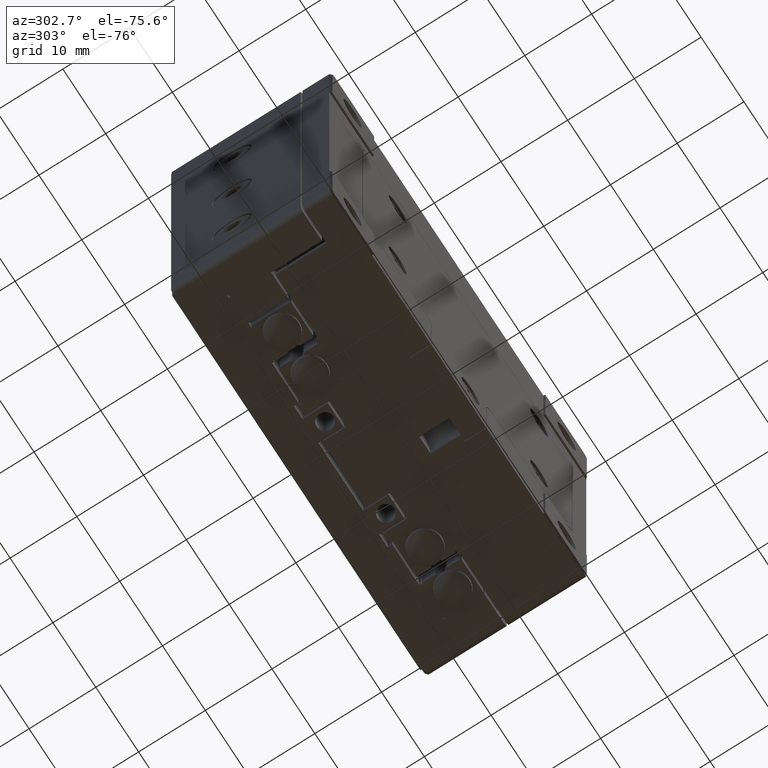
[diagram: clean part render]
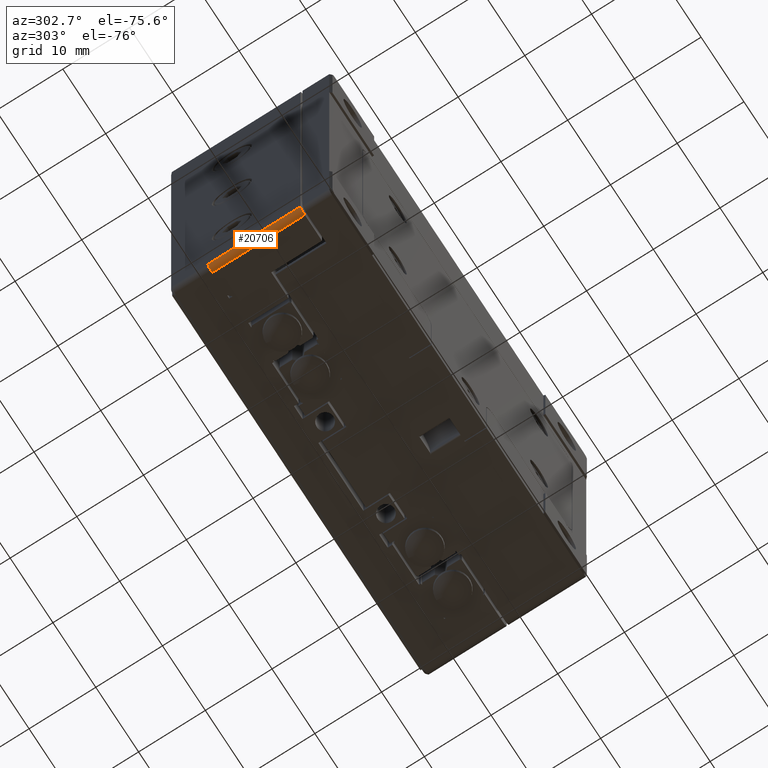
[diagram: same view with one face highlighted and labeled with its STEP entity id]
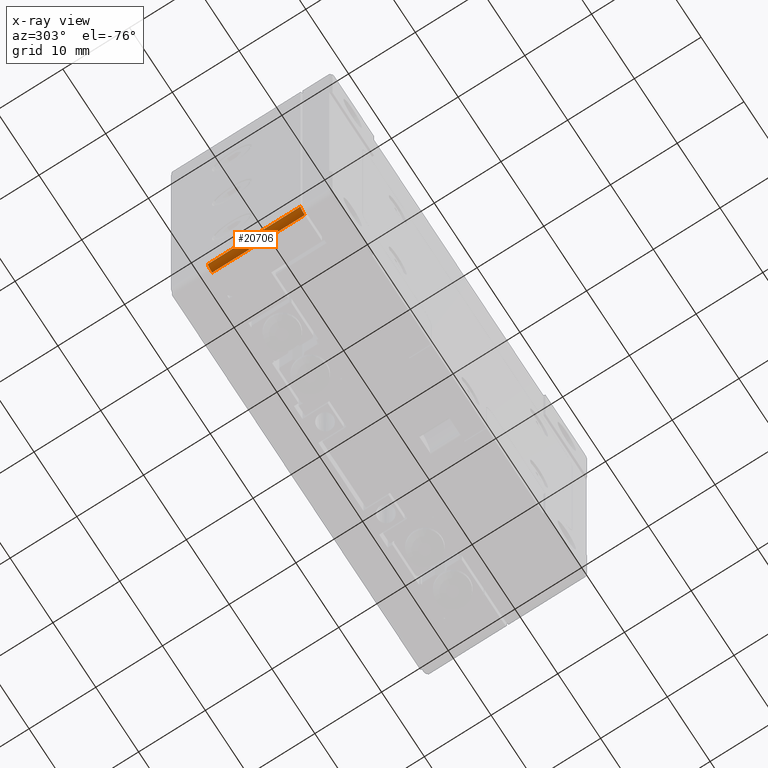
[diagram: x-ray of the same camera — body ghosted, the highlighted face saturated]
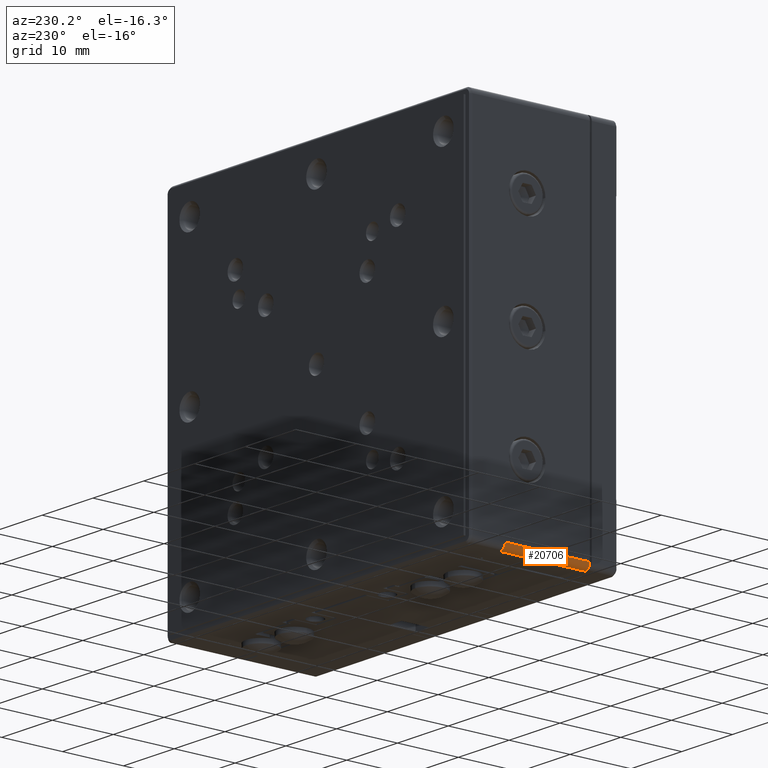
[diagram: same view with one face highlighted and labeled with its STEP entity id]
A machine part, auxiliary view. The second image highlights one B-rep face of the part: STEP entity #20706.
The next image is the same camera in x-ray: the body ghosted, the highlighted face saturated — about 0% of this face is hidden behind the body in this view.
A second angle (auxiliary view) of the same face is appended — the face is thin or edge-on in the first view.
In plain terms, the highlighted cylindrical surface (edge-blend (fillet) strip) has radius 1 mm, axis along (0, -1, -0).
Its self-contained STEP definition (entity closure, byte-faithful):
#2869 = EDGE_CURVE ( 'NONE', #10500, #21212, #18355, .T. ) ;
#3675 = VERTEX_POINT ( 'NONE', #10466 ) ;
#5029 = CARTESIAN_POINT ( 'NONE',  ( -32.75000000000000000, -29.00000000000000000, -6.975000000000000533 ) ) ;
#5832 = DIRECTION ( 'NONE',  ( 0.000000000000000000, 0.000000000000000000, 1.000000000000000000 ) ) ;
#5838 = LINE ( 'NONE', #20881, #22953 ) ;
#6413 = DIRECTION ( 'NONE',  ( 0.000000000000000000, 0.000000000000000000, -1.000000000000000000 ) ) ;
#7159 = ORIENTED_EDGE ( 'NONE', *, *, #9759, .F. ) ;
#8306 = CARTESIAN_POINT ( 'NONE',  ( -33.75000000000000000, -29.00000000000000000, 6.924999999999999822 ) ) ;
#8466 = FACE_OUTER_BOUND ( 'NONE', #14605, .T. ) ;
#8844 = DIRECTION ( 'NONE',  ( 0.000000000000000000, 0.000000000000000000, -1.000000000000000000 ) ) ;
#8859 = CIRCLE ( 'NONE', #9256, 1.000000000000000888 ) ;
#9256 = AXIS2_PLACEMENT_3D ( 'NONE', #13405, #5832, #17331 ) ;
#9396 = DIRECTION ( 'NONE',  ( 0.000000000000000000, 0.000000000000000000, -1.000000000000000000 ) ) ;
#9759 = EDGE_CURVE ( 'NONE', #21212, #10643, #8859, .T. ) ;
#10366 = DIRECTION ( 'NONE',  ( -1.000000000000000000, 0.000000000000000000, 0.000000000000000000 ) ) ;
#10466 = CARTESIAN_POINT ( 'NONE',  ( -32.75000000000000000, -30.00000000000000000, -6.975000000000000533 ) ) ;
#10500 = VERTEX_POINT ( 'NONE', #22595 ) ;
#10643 = VERTEX_POINT ( 'NONE', #14435 ) ;
#10762 = VECTOR ( 'NONE', #18231, 1000.000000000000000 ) ;
#12862 = EDGE_CURVE ( 'NONE', #3675, #10500, #19563, .T. ) ;
#12932 = CARTESIAN_POINT ( 'NONE',  ( -33.75000000000000000, -29.00000000000000000, 6.924999999999999822 ) ) ;
#13405 = CARTESIAN_POINT ( 'NONE',  ( -32.75000000000000000, -29.00000000000000000, 6.924999999999999822 ) ) ;
#14435 = CARTESIAN_POINT ( 'NONE',  ( -32.75000000000000000, -30.00000000000000000, 6.924999999999999822 ) ) ;
#14605 = EDGE_LOOP ( 'NONE', ( #23582, #24836, #7159, #16654 ) ) ;
#14924 = EDGE_CURVE ( 'NONE', #10643, #3675, #5838, .T. ) ;
#15999 = CARTESIAN_POINT ( 'NONE',  ( -32.75000000000000000, -29.00000000000000000, -6.975000000000000533 ) ) ;
#16654 = ORIENTED_EDGE ( 'NONE', *, *, #2869, .F. ) ;
#17331 = DIRECTION ( 'NONE',  ( 1.000000000000000000, 0.000000000000000000, 0.000000000000000000 ) ) ;
#18231 = DIRECTION ( 'NONE',  ( 0.000000000000000000, 0.000000000000000000, 1.000000000000000000 ) ) ;
#18355 = LINE ( 'NONE', #12932, #10762 ) ;
#19563 = CIRCLE ( 'NONE', #22395, 1.000000000000000888 ) ;
#20706 = ADVANCED_FACE ( 'NONE', ( #8466 ), #24124, .T. ) ;
#20881 = CARTESIAN_POINT ( 'NONE',  ( -32.75000000000000000, -30.00000000000000000, -6.975000000000000533 ) ) ;
#21212 = VERTEX_POINT ( 'NONE', #8306 ) ;
#22395 = AXIS2_PLACEMENT_3D ( 'NONE', #15999, #6413, #23706 ) ;
#22595 = CARTESIAN_POINT ( 'NONE',  ( -33.75000000000000000, -29.00000000000000000, -6.975000000000000533 ) ) ;
#22953 = VECTOR ( 'NONE', #9396, 1000.000000000000000 ) ;
#23582 = ORIENTED_EDGE ( 'NONE', *, *, #12862, .F. ) ;
#23706 = DIRECTION ( 'NONE',  ( -1.000000000000000000, 0.000000000000000000, 0.000000000000000000 ) ) ;
#23991 = AXIS2_PLACEMENT_3D ( 'NONE', #5029, #8844, #10366 ) ;
#24124 = CYLINDRICAL_SURFACE ( 'NONE', #23991, 1.000000000000000888 ) ;
#24836 = ORIENTED_EDGE ( 'NONE', *, *, #14924, .F. ) ;